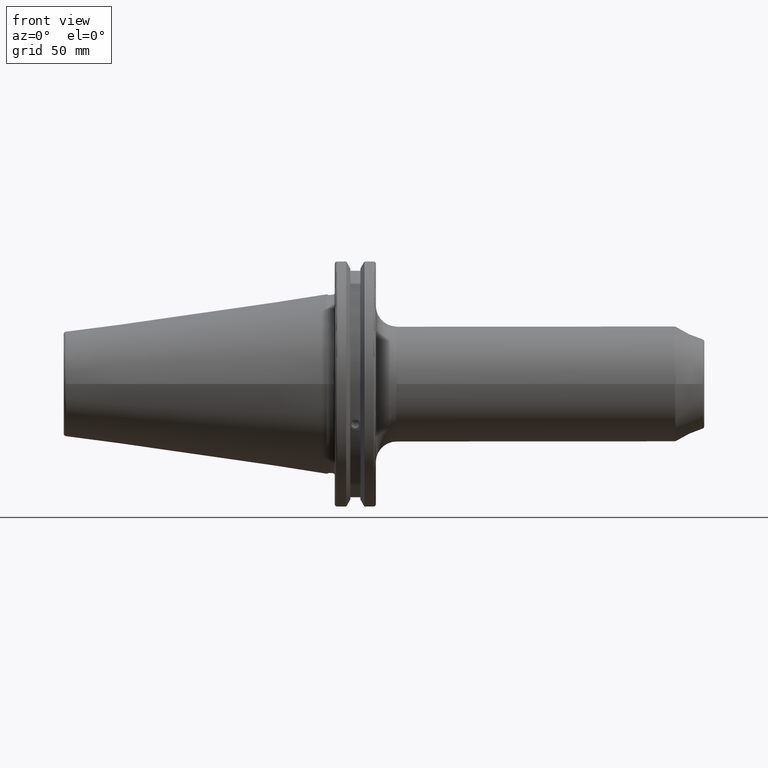
[diagram: clean part render]
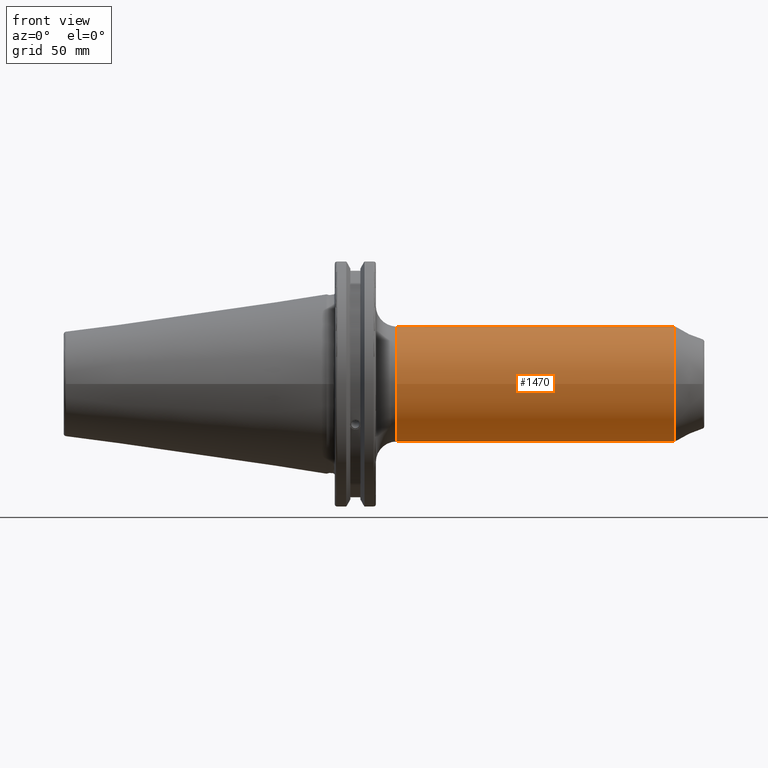
[diagram: same view with one face highlighted and labeled with its STEP entity id]
A machine part, front view. The second image highlights one B-rep face of the part: STEP entity #1470.
In plain terms, the highlighted cylindrical surface (bore or boss wall) has radius 22.225 mm, axis along (1, 0, 0).
Its self-contained STEP definition (entity closure, byte-faithful):
#43=FACE_BOUND('',#259,.T.);
#101=B_SPLINE_CURVE_WITH_KNOTS('',3,(#2219,#2220,#2221,#2222,#2223,#2224,
#2225,#2226,#2227,#2228,#2229,#2230,#2231,#2232,#2233,#2234,#2235,#2236,
#2237,#2238,#2239,#2240,#2241,#2242,#2243,#2244),.UNSPECIFIED.,.F.,.F.,
(4,2,2,2,2,2,2,2,2,2,2,2,4),(0.,0.285706651693721,0.571413303387441,0.868206131903913,
1.16499896042039,1.46179178893686,1.75858461745333,2.04429126914705,2.32999792084077,
2.61570457253449,2.90141122422821,3.19820405274468,3.49499688126116),
 .UNSPECIFIED.);
#102=B_SPLINE_CURVE_WITH_KNOTS('',3,(#2245,#2246,#2247,#2248,#2249,#2250,
#2251,#2252,#2253,#2254),.UNSPECIFIED.,.F.,.F.,(4,2,2,2,4),(3.49499688126116,
3.79178970977763,4.0885825382941,4.37428918998782,4.65999584168154),
 .UNSPECIFIED.);
#142=CYLINDRICAL_SURFACE('',#1587,22.225);
#172=FACE_OUTER_BOUND('',#258,.T.);
#258=EDGE_LOOP('',(#1019,#1020,#1021,#1022,#1023,#1024));
#259=EDGE_LOOP('',(#1025,#1026));
#361=LINE('',#2267,#453);
#453=VECTOR('',#1772,22.225);
#547=CIRCLE('',#1583,22.225);
#550=CIRCLE('',#1586,22.225);
#551=CIRCLE('',#1588,22.225);
#552=CIRCLE('',#1589,22.225);
#624=VERTEX_POINT('',#2216);
#625=VERTEX_POINT('',#2218);
#626=VERTEX_POINT('',#2256);
#627=VERTEX_POINT('',#2257);
#629=VERTEX_POINT('',#2264);
#630=VERTEX_POINT('',#2265);
#780=EDGE_CURVE('',#625,#624,#101,.T.);
#781=EDGE_CURVE('',#624,#625,#102,.T.);
#782=EDGE_CURVE('',#626,#627,#547,.T.);
#785=EDGE_CURVE('',#627,#626,#550,.T.);
#786=EDGE_CURVE('',#629,#630,#551,.T.);
#787=EDGE_CURVE('',#629,#626,#361,.T.);
#788=EDGE_CURVE('',#630,#629,#552,.T.);
#1019=ORIENTED_EDGE('',*,*,#786,.F.);
#1020=ORIENTED_EDGE('',*,*,#787,.T.);
#1021=ORIENTED_EDGE('',*,*,#785,.F.);
#1022=ORIENTED_EDGE('',*,*,#782,.F.);
#1023=ORIENTED_EDGE('',*,*,#787,.F.);
#1024=ORIENTED_EDGE('',*,*,#788,.F.);
#1025=ORIENTED_EDGE('',*,*,#780,.T.);
#1026=ORIENTED_EDGE('',*,*,#781,.T.);
#1470=ADVANCED_FACE('',(#172,#43),#142,.T.);
#1583=AXIS2_PLACEMENT_3D('',#2258,#1760,#1761);
#1586=AXIS2_PLACEMENT_3D('',#2262,#1766,#1767);
#1587=AXIS2_PLACEMENT_3D('',#2263,#1768,#1769);
#1588=AXIS2_PLACEMENT_3D('',#2266,#1770,#1771);
#1589=AXIS2_PLACEMENT_3D('',#2268,#1773,#1774);
#1760=DIRECTION('center_axis',(-1.,0.,0.));
#1761=DIRECTION('ref_axis',(0.,-1.,-1.22464679914735E-16));
#1766=DIRECTION('center_axis',(-1.,0.,0.));
#1767=DIRECTION('ref_axis',(0.,-1.,-1.22464679914735E-16));
#1768=DIRECTION('center_axis',(1.,0.,0.));
#1769=DIRECTION('ref_axis',(0.,1.,0.));
#1770=DIRECTION('center_axis',(1.,0.,0.));
#1771=DIRECTION('ref_axis',(0.,-1.,1.83697019872103E-16));
#1772=DIRECTION('',(-1.,0.,0.));
#1773=DIRECTION('center_axis',(1.,0.,0.));
#1774=DIRECTION('ref_axis',(0.,-1.,1.83697019872103E-16));
#2216=CARTESIAN_POINT('',(114.65,22.225,1.01033360929657E-15));
#2218=CARTESIAN_POINT('',(122.9,21.0640818382873,-7.08908183828731));
#2219=CARTESIAN_POINT('Ctrl Pts',(122.9,21.0640818382873,-7.08908183828731));
#2220=CARTESIAN_POINT('Ctrl Pts',(123.852355505646,21.0640818382873,-7.08908183828731));
#2221=CARTESIAN_POINT('Ctrl Pts',(124.877447206829,21.1172822160691,-6.93706939600738));
#2222=CARTESIAN_POINT('Ctrl Pts',(126.805103114522,21.3165094684298,-6.29833098617765));
#2223=CARTESIAN_POINT('Ctrl Pts',(127.707968376249,21.4600099475821,-5.81172811466359));
#2224=CARTESIAN_POINT('Ctrl Pts',(129.219153578054,21.7469359800464,-4.62679965530442));
#2225=CARTESIAN_POINT('Ctrl Pts',(129.925233976879,21.9114714688491,-3.8312978921967));
#2226=CARTESIAN_POINT('Ctrl Pts',(130.891559929377,22.1526075235609,-2.0133100972833));
#2227=CARTESIAN_POINT('Ctrl Pts',(131.15,22.225,-0.98930942838824));
#2228=CARTESIAN_POINT('Ctrl Pts',(131.15,22.225,0.989309428388241));
#2229=CARTESIAN_POINT('Ctrl Pts',(130.891559929377,22.1526075235609,2.01331009728328));
#2230=CARTESIAN_POINT('Ctrl Pts',(129.925233976879,21.9114714688491,3.83129789219669));
#2231=CARTESIAN_POINT('Ctrl Pts',(129.219153578054,21.7469359800464,4.62679965530442));
#2232=CARTESIAN_POINT('Ctrl Pts',(127.707968376249,21.4600099475821,5.81172811466359));
#2233=CARTESIAN_POINT('Ctrl Pts',(126.805103114522,21.3165094684298,6.29833098617765));
#2234=CARTESIAN_POINT('Ctrl Pts',(124.877447206829,21.1172822160691,6.93706939600738));
#2235=CARTESIAN_POINT('Ctrl Pts',(123.852355505646,21.0640818382873,7.08908183828731));
#2236=CARTESIAN_POINT('Ctrl Pts',(121.947644494354,21.0640818382873,7.08908183828731));
#2237=CARTESIAN_POINT('Ctrl Pts',(120.922552793171,21.1172822160691,6.93706939600738));
#2238=CARTESIAN_POINT('Ctrl Pts',(118.994896885478,21.3165094684298,6.29833098617765));
#2239=CARTESIAN_POINT('Ctrl Pts',(118.092031623751,21.4600099475821,5.81172811466359));
#2240=CARTESIAN_POINT('Ctrl Pts',(116.580846421946,21.7469359800464,4.62679965530441));
#2241=CARTESIAN_POINT('Ctrl Pts',(115.874766023121,21.9114714688491,3.8312978921967));
#2242=CARTESIAN_POINT('Ctrl Pts',(114.908440070623,22.1526075235609,2.0133100972833));
#2243=CARTESIAN_POINT('Ctrl Pts',(114.65,22.225,0.989309428388245));
#2244=CARTESIAN_POINT('Ctrl Pts',(114.65,22.225,3.05311331771918E-15));
#2245=CARTESIAN_POINT('Ctrl Pts',(114.65,22.225,-2.77555756156289E-16));
#2246=CARTESIAN_POINT('Ctrl Pts',(114.65,22.225,-0.989309428388242));
#2247=CARTESIAN_POINT('Ctrl Pts',(114.908440070623,22.1526075235609,-2.01331009728331));
#2248=CARTESIAN_POINT('Ctrl Pts',(115.874766023121,21.9114714688491,-3.8312978921967));
#2249=CARTESIAN_POINT('Ctrl Pts',(116.580846421946,21.7469359800464,-4.62679965530441));
#2250=CARTESIAN_POINT('Ctrl Pts',(118.092031623751,21.4600099475821,-5.81172811466359));
#2251=CARTESIAN_POINT('Ctrl Pts',(118.994896885478,21.3165094684298,-6.29833098617765));
#2252=CARTESIAN_POINT('Ctrl Pts',(120.922552793171,21.1172822160691,-6.93706939600738));
#2253=CARTESIAN_POINT('Ctrl Pts',(121.947644494354,21.0640818382873,-7.08908183828731));
#2254=CARTESIAN_POINT('Ctrl Pts',(122.9,21.0640818382873,-7.08908183828731));
#2256=CARTESIAN_POINT('',(27.05,-22.225,-2.72177751110499E-15));
#2257=CARTESIAN_POINT('',(27.05,-2.72177751110499E-15,-22.225));
#2258=CARTESIAN_POINT('Origin',(27.05,0.,0.));
#2262=CARTESIAN_POINT('Origin',(27.05,0.,0.));
#2263=CARTESIAN_POINT('Origin',(76.9224756701688,0.,0.));
#2264=CARTESIAN_POINT('',(134.573256677695,-22.225,-2.72177751110499E-15));
#2265=CARTESIAN_POINT('',(134.573256677695,-2.72177751110499E-15,22.225));
#2266=CARTESIAN_POINT('Origin',(134.573256677695,0.,0.));
#2267=CARTESIAN_POINT('',(76.9224756701688,-22.225,-2.72177751110499E-15));
#2268=CARTESIAN_POINT('Origin',(134.573256677695,0.,0.));